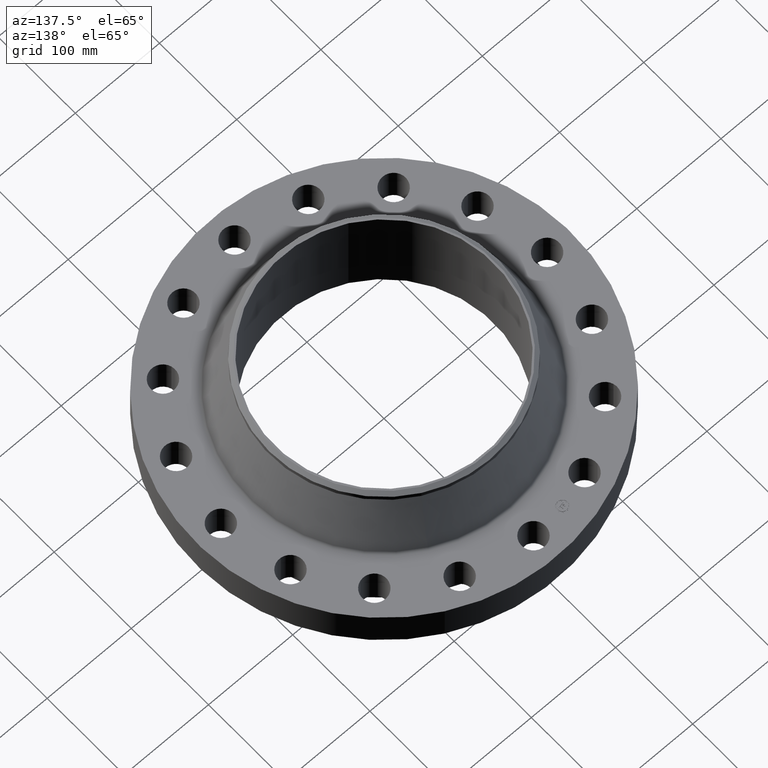
[diagram: clean part render]
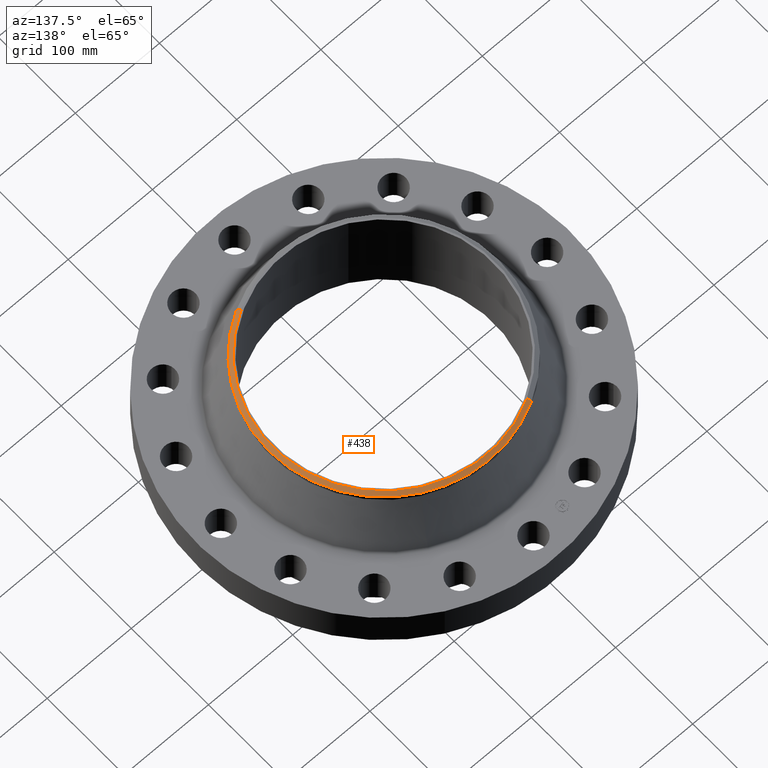
[diagram: same view with one face highlighted and labeled with its STEP entity id]
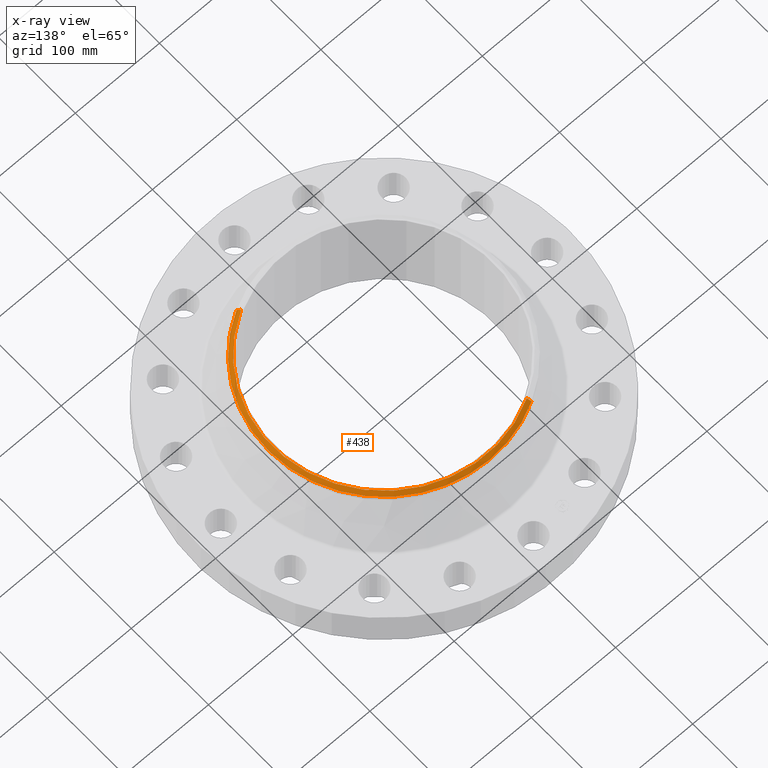
[diagram: x-ray of the same camera — body ghosted, the highlighted face saturated]
A machine part, auxiliary view. The second image highlights one B-rep face of the part: STEP entity #438.
The next image is the same camera in x-ray: the body ghosted, the highlighted face saturated — about 0% of this face is hidden behind the body in this view.
In plain terms, the highlighted conical surface has half-angle 52.5 deg.
Its self-contained STEP definition (entity closure, byte-faithful):
#285=AXIS2_PLACEMENT_3D('Circle Axis2P3D',#283,#284,$) ;
#312=AXIS2_PLACEMENT_3D('Circle Axis2P3D',#310,#311,$) ;
#326=AXIS2_PLACEMENT_3D('Cone Axis2P3D',#323,#324,#325) ;
#419=AXIS2_PLACEMENT_3D('Circle Axis2P3D',#417,#418,$) ;
#280=CARTESIAN_POINT('Vertex',(2.57691227001,4.71700627018,4.4285877009)) ;
#283=CARTESIAN_POINT('Axis2P3D Location',(0.,0.,4.4285877009)) ;
#287=CARTESIAN_POINT('Vertex',(2.57691227001,-4.71700627018,4.4285877009)) ;
#307=CARTESIAN_POINT('Vertex',(-2.57691227001,4.71700627018,4.4285877009)) ;
#310=CARTESIAN_POINT('Axis2P3D Location',(0.,0.,4.4285877009)) ;
#323=CARTESIAN_POINT('Axis2P3D Location',(0.,0.,4.56000000002)) ;
#328=CARTESIAN_POINT('Line Origine',(2.53585909889,-4.64185894451,4.49429385046)) ;
#332=CARTESIAN_POINT('Vertex',(2.49480592777,-4.56671161883,4.56000000002)) ;
#339=CARTESIAN_POINT('Vertex',(-2.49480592777,4.56671161883,4.56000000002)) ;
#342=CARTESIAN_POINT('Line Origine',(-2.53585909889,4.64185894451,4.49429385046)) ;
#417=CARTESIAN_POINT('Axis2P3D Location',(0.,0.,4.56000000002)) ;
#284=DIRECTION('Axis2P3D Direction',(0.,0.,-0.0393700787402)) ;
#311=DIRECTION('Axis2P3D Direction',(0.,0.,-0.0393700787402)) ;
#324=DIRECTION('Axis2P3D Direction',(-0.,-0.,-0.0393700787402)) ;
#325=DIRECTION('Axis2P3D XDirection',(-0.0188750212049,0.0345504945626,0.)) ;
#329=DIRECTION('Vector Direction',(0.014974561121,-0.02741075027,-0.023966985394)) ;
#343=DIRECTION('Vector Direction',(-0.014974561121,0.02741075027,-0.023966985394)) ;
#418=DIRECTION('Axis2P3D Direction',(0.,0.,-0.0393700787402)) ;
#330=VECTOR('Line Direction',#329,0.0393700787402) ;
#344=VECTOR('Line Direction',#343,0.0393700787402) ;
#432=ORIENTED_EDGE('',*,*,#346,.F.) ;
#433=ORIENTED_EDGE('',*,*,#421,.F.) ;
#434=ORIENTED_EDGE('',*,*,#334,.T.) ;
#435=ORIENTED_EDGE('',*,*,#289,.T.) ;
#436=ORIENTED_EDGE('',*,*,#314,.F.) ;
#438=ADVANCED_FACE('PartBody',(#437),#327,.T.) ;
#286=CIRCLE('generated circle',#285,5.37500000002) ;
#313=CIRCLE('generated circle',#312,5.37500000002) ;
#420=CIRCLE('generated circle',#419,5.2037401575) ;
#327=CONICAL_SURFACE('Cone',#326,5.2037401575,0.916297857297) ;
#289=EDGE_CURVE('',#288,#281,#286,.F.) ;
#314=EDGE_CURVE('',#308,#281,#313,.T.) ;
#334=EDGE_CURVE('',#333,#288,#331,.T.) ;
#346=EDGE_CURVE('',#340,#308,#345,.T.) ;
#421=EDGE_CURVE('',#333,#340,#420,.F.) ;
#431=EDGE_LOOP('',(#432,#433,#434,#435,#436)) ;
#437=FACE_OUTER_BOUND('',#431,.T.) ;
#331=LINE('Line',#328,#330) ;
#345=LINE('Line',#342,#344) ;
#281=VERTEX_POINT('',#280) ;
#288=VERTEX_POINT('',#287) ;
#308=VERTEX_POINT('',#307) ;
#333=VERTEX_POINT('',#332) ;
#340=VERTEX_POINT('',#339) ;